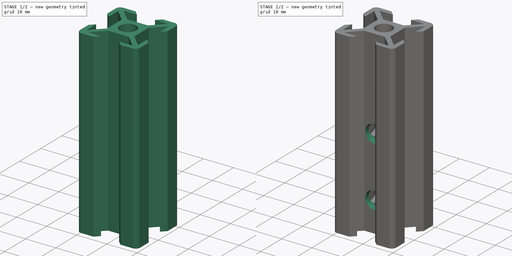
[diagram: build sequence overview — one tinted view per stage of 2, left to right]
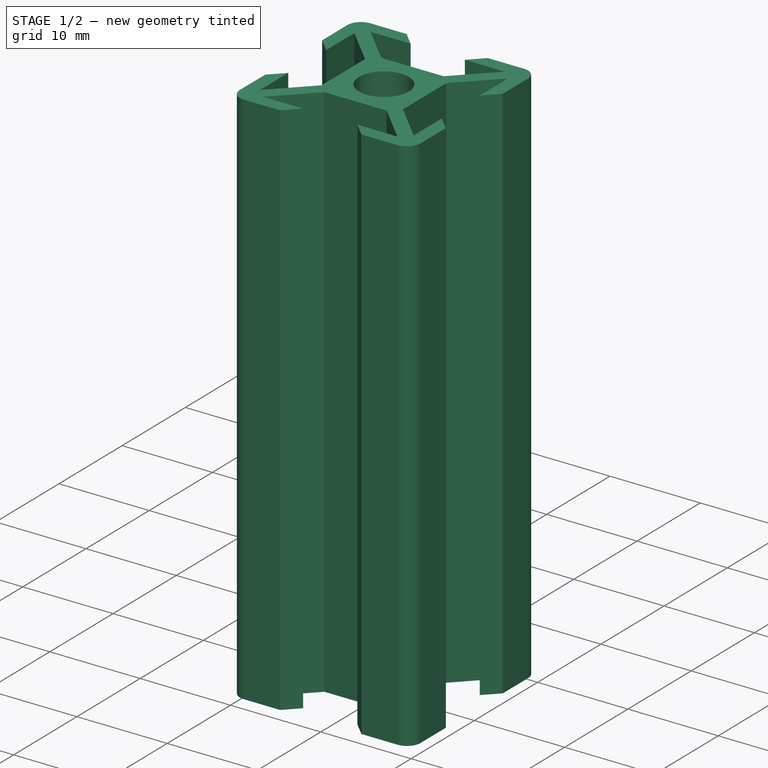
[diagram: stage 1 of 2 — iso view after this stage's code; geometry added in this stage tinted green]
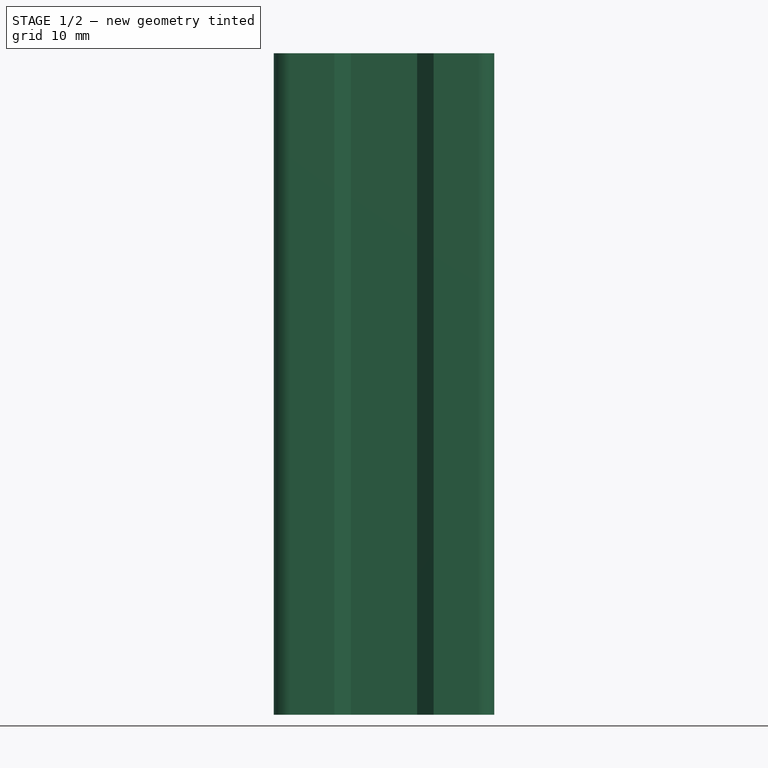
[diagram: stage 1 of 2 — front view after this stage's code; geometry added in this stage tinted green]
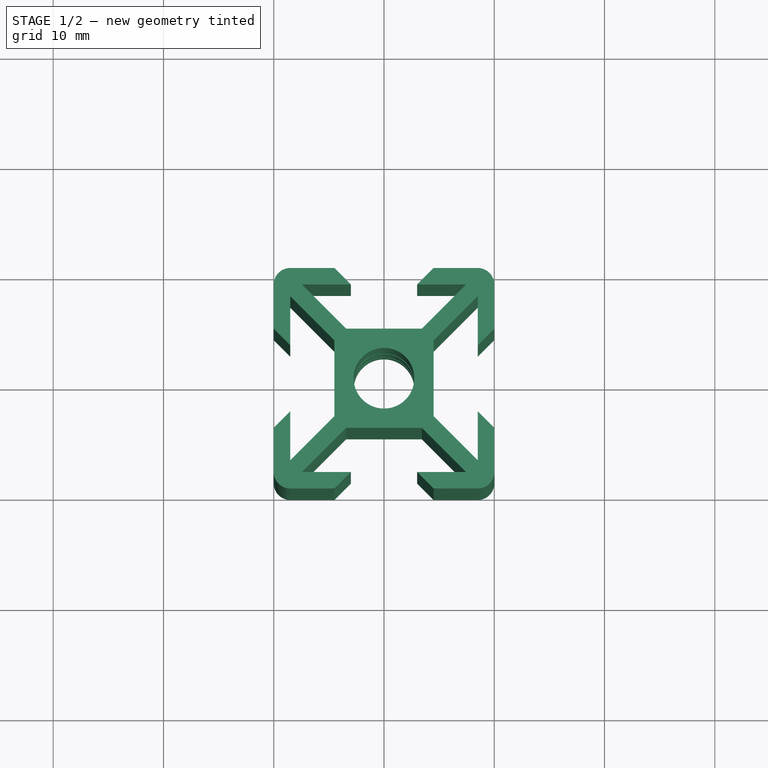
[diagram: stage 1 of 2 — top view after this stage's code; geometry added in this stage tinted green]
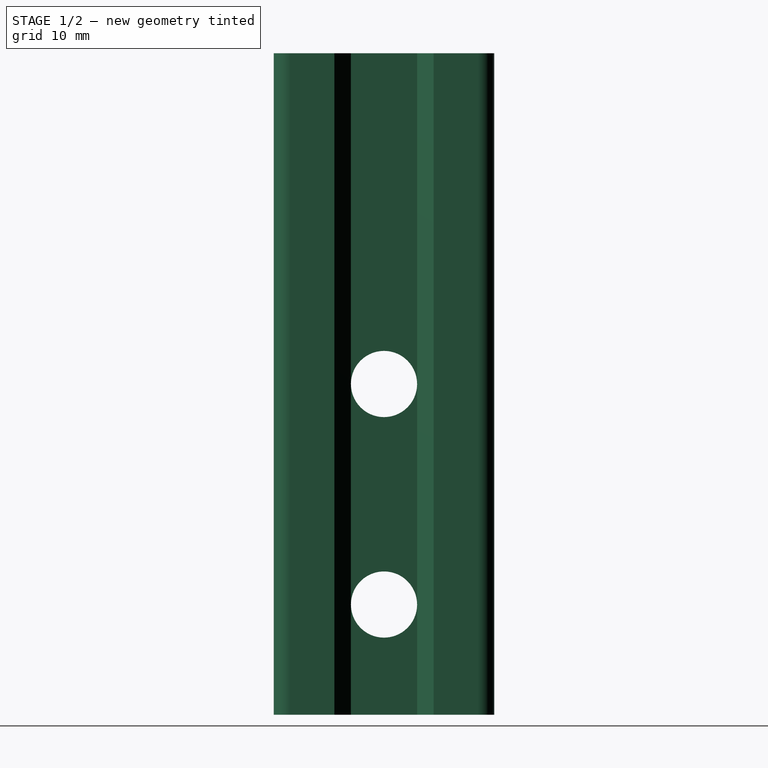
[diagram: stage 1 of 2 — right view after this stage's code; geometry added in this stage tinted green]
FCSTD DOCUMENT  (FreeCAD 0.20R29603 (Git))
Label: holed_2020_beam_40mm
License: All rights reserved
LicenseURL: http://en.wikipedia.org/wiki/All_rights_reserved
objects: Sketcher::SketchObject×3, PartDesign::Plane×2, PartDesign::Pocket×2, Spreadsheet::Sheet×1, PartDesign::Pad×1, PartDesign::Body×1
note: 12 computed .brp shape members not serialized (recipe doc carries the construction recipe); baked Part::Feature solids carry a one-line shape summary decoded from their .brp

FEATURE [Spreadsheet::Sheet] Spreadsheet  label="parameters"
  cells = A1=Beam dimensions; A2=Length; B2(beam_length)=60; A3=cross hole size; B3(cross_hole_size)=6
FEATURE [Sketcher::SketchObject] Sketch
  FullyConstrained = true
  MapMode = 5
  Support = -> [XY_Plane]
  sketch-geometry (57):
    g0: Circle CenterX=0 CenterY=0 CenterZ=0 NormalX=0 NormalY=0 NormalZ=1 AngleXU=0 Radius=2.75
    g1: LineSegment StartX=-4.5 StartY=4.5 StartZ=0 EndX=4.5 EndY=4.5 EndZ=0
    g2: LineSegment StartX=4.5 StartY=4.5 StartZ=0 EndX=4.5 EndY=-4.5 EndZ=0
    g3: LineSegment StartX=4.5 StartY=-4.5 StartZ=0 EndX=-4.5 EndY=-4.5 EndZ=0
    g4: LineSegment StartX=-4.5 StartY=-4.5 StartZ=0 EndX=-4.5 EndY=4.5 EndZ=0
    g5: LineSegment StartX=-10 StartY=10 StartZ=0 EndX=10 EndY=10 EndZ=0
    g6: LineSegment StartX=10 StartY=10 StartZ=0 EndX=10 EndY=-10 EndZ=0
    g7: LineSegment StartX=10 StartY=-10 StartZ=0 EndX=-10 EndY=-10 EndZ=0
    g8: LineSegment StartX=-10 StartY=-10 StartZ=0 EndX=-10 EndY=10 EndZ=0
    g9: LineSegment StartX=-8.5 StartY=8.5 StartZ=0 EndX=8.5 EndY=8.5 EndZ=0
    g10: LineSegment StartX=8.5 StartY=8.5 StartZ=0 EndX=8.5 EndY=-8.5 EndZ=0
    g11: LineSegment StartX=8.5 StartY=-8.5 StartZ=0 EndX=-8.5 EndY=-8.5 EndZ=0
    g12: LineSegment StartX=-8.5 StartY=-8.5 StartZ=0 EndX=-8.5 EndY=8.5 EndZ=0
    g13: ArcOfCircle CenterX=-8.5 CenterY=8.5 CenterZ=0 NormalX=0 NormalY=0 NormalZ=1 AngleXU=0 Radius=1.5 StartAngle=1.5708 EndAngle=3.14159
    g14: ArcOfCircle CenterX=8.5 CenterY=8.5 CenterZ=0 NormalX=0 NormalY=0 NormalZ=1 AngleXU=0 Radius=1.5 StartAngle=2.20881e-08 EndAngle=1.5708
    g15: ArcOfCircle CenterX=8.5 CenterY=-8.5 CenterZ=0 NormalX=0 NormalY=0 NormalZ=1 AngleXU=0 Radius=1.5 StartAngle=4.71239 EndAngle=6.28319
    g16: ArcOfCircle CenterX=-8.5 CenterY=-8.5 CenterZ=0 NormalX=0 NormalY=0 NormalZ=1 AngleXU=0 Radius=1.5 StartAngle=3.14159 EndAngle=4.71239
    g17: LineSegment StartX=7.43934 StartY=8.5 StartZ=0 EndX=8.5 EndY=7.43934 EndZ=0
    g18: LineSegment StartX=8.5 StartY=10 StartZ=0 EndX=4.5 EndY=10 EndZ=0
    g19: LineSegment StartX=4.5 StartY=10 StartZ=0 EndX=3 EndY=8.5 EndZ=0
    g20: LineSegment StartX=3 StartY=8.5 StartZ=0 EndX=7.43934 EndY=8.5 EndZ=0
    g21: LineSegment StartX=7.43934 StartY=8.5 StartZ=0 EndX=3.43934 EndY=4.5 EndZ=0
    g22: LineSegment StartX=-8.5 StartY=10 StartZ=0 EndX=-4.5 EndY=10 EndZ=0
    g23: LineSegment StartX=-4.5 StartY=10 StartZ=0 EndX=-3 EndY=8.5 EndZ=0
    g24: LineSegment StartX=-7.43934 StartY=8.5 StartZ=0 EndX=-8.5 EndY=7.43934 EndZ=0
    g25: LineSegment StartX=-8.5 StartY=-7.43934 StartZ=0 EndX=-7.43934 EndY=-8.5 EndZ=0
    g26: LineSegment StartX=8.5 StartY=-7.43934 StartZ=0 EndX=7.43934 EndY=-8.5 EndZ=0
    g27: LineSegment StartX=-3 StartY=8.5 StartZ=0 EndX=-7.43934 EndY=8.5 EndZ=0
    g28: LineSegment StartX=-7.43934 StartY=8.5 StartZ=0 EndX=-3.43934 EndY=4.5 EndZ=0
    g29: LineSegment StartX=-3.43934 StartY=4.5 StartZ=0 EndX=3.43934 EndY=4.5 EndZ=0
    g30: LineSegment StartX=-10 StartY=8.5 StartZ=0 EndX=-10 EndY=4.5 EndZ=0
    g31: LineSegment StartX=-10 StartY=4.5 StartZ=0 EndX=-8.5 EndY=3 EndZ=0
    g32: LineSegment StartX=-8.5 StartY=3 StartZ=0 EndX=-8.5 EndY=7.43934 EndZ=0
    g33: LineSegment StartX=-8.5 StartY=7.43934 StartZ=0 EndX=-4.5 EndY=3.43934 EndZ=0
    g34: LineSegment StartX=-4.5 StartY=3.43934 StartZ=0 EndX=-4.5 EndY=-3.43934 EndZ=0
    g35: LineSegment StartX=-4.5 StartY=-3.43934 StartZ=0 EndX=-8.5 EndY=-7.43934 EndZ=0
    g36: LineSegment StartX=-8.5 StartY=-7.43934 StartZ=0 EndX=-8.5 EndY=-3 EndZ=0
    g37: LineSegment StartX=-8.5 StartY=-3 StartZ=0 EndX=-10 EndY=-4.5 EndZ=0
    g38: LineSegment StartX=-10 StartY=-4.5 StartZ=0 EndX=-10 EndY=-8.5 EndZ=0
    g39: LineSegment StartX=-8.5 StartY=-10 StartZ=0 EndX=-4.5 EndY=-10 EndZ=0
    g40: LineSegment StartX=-4.5 StartY=-10 StartZ=0 EndX=-3 EndY=-8.5 EndZ=0
    g41: LineSegment StartX=-3 StartY=-8.5 StartZ=0 EndX=-7.43934 EndY=-8.5 EndZ=0
    g42: LineSegment StartX=-7.43934 StartY=-8.5 StartZ=0 EndX=-3.43934 EndY=-4.5 EndZ=0
    g43: LineSegment StartX=-3.43934 StartY=-4.5 StartZ=0 EndX=3.43934 EndY=-4.5 EndZ=0
    g44: LineSegment StartX=3.43934 StartY=-4.5 StartZ=0 EndX=7.43934 EndY=-8.5 EndZ=0
    g45: LineSegment StartX=7.43934 StartY=-8.5 StartZ=0 EndX=3 EndY=-8.5 EndZ=0
    g46: LineSegment StartX=3 StartY=-8.5 StartZ=0 EndX=4.5 EndY=-10 EndZ=0
    g47: LineSegment StartX=4.5 StartY=-10 StartZ=0 EndX=8.5 EndY=-10 EndZ=0
    g48: LineSegment StartX=10 StartY=-8.5 StartZ=0 EndX=10 EndY=-4.5 EndZ=0
    g49: LineSegment StartX=10 StartY=-4.5 StartZ=0 EndX=8.5 EndY=-3 EndZ=0
    g50: LineSegment StartX=8.5 StartY=-3 StartZ=0 EndX=8.5 EndY=-7.43934 EndZ=0
    g51: LineSegment StartX=8.5 StartY=-7.43934 StartZ=0 EndX=4.5 EndY=-3.43934 EndZ=0
    g52: LineSegment StartX=4.5 StartY=-3.43934 StartZ=0 EndX=4.5 EndY=3.43934 EndZ=0
    g53: LineSegment StartX=4.5 StartY=3.43934 StartZ=0 EndX=8.5 EndY=7.43934 EndZ=0
    g54: LineSegment StartX=8.5 StartY=7.43934 StartZ=0 EndX=8.5 EndY=3 EndZ=0
    g55: LineSegment StartX=8.5 StartY=3 StartZ=0 EndX=10 EndY=4.5 EndZ=0
    g56: LineSegment StartX=10 StartY=4.5 StartZ=0 EndX=10 EndY=8.5 EndZ=0
  constraints (158):
    c: Coincident(g0,g-1)
    c: Coincident(g1,g2)
    c: Coincident(g2,g3)
    c: Coincident(g3,g4)
    c: Coincident(g4,g1)
    c: Horizontal(g1)
    c: Horizontal(g3)
    c: Vertical(g2)
    c: Vertical(g4)
    c: Symmetric(g1,g3,g0)
    c: Diameter(g0) = 5.5
    c: Equal(g1,g2)
    c: Distance(g1) = 9
    c: Coincident(g5,g6)
    c: Coincident(g6,g7)
    c: Coincident(g7,g8)
    c: Coincident(g8,g5)
    c: Horizontal(g5)
    c: Horizontal(g7)
    c: Vertical(g6)
    c: Vertical(g8)
    c: Symmetric(g5,g7,g0)
    c: Distance(g5) = 20
    c: Equal(g5,g6)
    c: Coincident(g9,g10)
    c: Coincident(g10,g11)
    c: Coincident(g11,g12)
    c: Coincident(g12,g9)
    c: Horizontal(g9)
    c: Horizontal(g11)
    c: Vertical(g10)
    c: Vertical(g12)
    c: Symmetric(g9,g11,g0)
    c: Distance(g9) = 17
    c: Equal(g9,g10)
    c: Coincident(g13,g9)
    c: PointOnObject(g13,g5)
    c: PointOnObject(g13,g8)
    c: Vertical(g13,g13)
    c: Coincident(g14,g9)
    c: PointOnObject(g14,g5)
    c: PointOnObject(g14,g6)
    c: Vertical(g14,g14)
    c: Coincident(g15,g10)
    c: PointOnObject(g15,g6)
    c: PointOnObject(g15,g7)
    c: Vertical(g15,g15)
    c: Coincident(g16,g11)
    c: PointOnObject(g16,g7)
    c: PointOnObject(g16,g8)
    c: Vertical(g16,g16)
    c: PointOnObject(g17,g9)
    c: PointOnObject(g17,g10)
    c: Distance(g17) = 1.5
    c: Angle(g17,g10) = 2.35619
    c: Tangent(g14,g18) = -1.5708
    c: Coincident(g18,g19)
    c: PointOnObject(g19,g9)
    c: Coincident(g19,g20)
    c: Coincident(g20,g17)
    c: Coincident(g20,g21)
    c: PointOnObject(g21,g1)
    c: Angle(g19,g18) = 2.35619
    c: Tangent(g13,g22) = 1.5708
    c: Coincident(g22,g23)
    c: PointOnObject(g23,g9)
    c: PointOnObject(g24,g9)
    c: PointOnObject(g24,g12)
    c: PointOnObject(g25,g12)
    c: PointOnObject(g25,g11)
    c: PointOnObject(g26,g10)
    c: PointOnObject(g26,g11)
    c: Equal(g24,g17)
    c: Equal(g17,g25)
    c: Equal(g17,g26)
    c: Horizontal(g24,g17)
    c: Vertical(g20,g26)
    c: Horizontal(g26,g25)
    c: Coincident(g23,g27)
    c: Coincident(g27,g24)
    c: Coincident(g27,g28)
    c: PointOnObject(g28,g1)
    c: Distance(g19,g23) = 6
    c: Angle(g22,g23) = 2.35619
    c: Equal(g27,g20)
    c: Angle(g20,g21) = 0.785398
    c: Equal(g21,g28)
    c: Coincident(g29,g28)
    c: Coincident(g29,g21)
    c: Tangent(g13,g30) = -1.5708
    c: Coincident(g30,g31)
    c: PointOnObject(g31,g12)
    c: Coincident(g31,g32)
    c: Coincident(g32,g24)
    c: Coincident(g32,g33)
    c: PointOnObject(g33,g4)
    c: Coincident(g33,g34)
    c: PointOnObject(g34,g4)
    c: Coincident(g34,g35)
    c: Coincident(g35,g25)
    c: Coincident(g35,g36)
    c: PointOnObject(g36,g12)
    c: Coincident(g36,g37)
    c: PointOnObject(g37,g8)
    c: Coincident(g37,g38)
    c: Coincident(g38,g16)
    c: Tangent(g16,g39) = -1.5708
    c: Coincident(g39,g40)
    c: PointOnObject(g40,g11)
    c: Coincident(g40,g41)
    c: Coincident(g41,g25)
    c: Coincident(g41,g42)
    c: PointOnObject(g42,g3)
    c: Coincident(g42,g43)
    c: PointOnObject(g43,g3)
    c: Coincident(g43,g44)
    c: Coincident(g44,g26)
    c: Coincident(g44,g45)
    c: PointOnObject(g45,g11)
    c: Coincident(g45,g46)
    c: PointOnObject(g46,g7)
    c: Coincident(g46,g47)
    c: Coincident(g47,g15)
    c: Tangent(g15,g48) = -1.5708
    c: Coincident(g48,g49)
    c: PointOnObject(g49,g10)
    c: Coincident(g49,g50)
    c: Coincident(g50,g26)
    c: Coincident(g50,g51)
    c: PointOnObject(g51,g2)
    c: Coincident(g51,g52)
    c: PointOnObject(g52,g2)
    c: Coincident(g52,g53)
    c: Coincident(g53,g17)
    c: Coincident(g53,g54)
    c: PointOnObject(g54,g10)
    c: Coincident(g54,g55)
    c: PointOnObject(g55,g6)
    c: Coincident(g55,g56)
    c: Coincident(g56,g14)
    c: Equal(g21,g53)
    c: Equal(g21,g51)
    c: Equal(g21,g44)
    c: Equal(g21,g42)
    c: Equal(g21,g35)
    c: Equal(g20,g32)
    c: Equal(g20,g36)
    c: Equal(g20,g41)
    c: Vertical(g22,g39)
    c: Vertical(g18,g46)
    c: Equal(g20,g45)
    c: Equal(g21,g33)
    c: Angle(g31,g30) = 2.35619
    c: Angle(g38,g37) = 2.35619
    c: Horizontal(g31,g54)
    c: Horizontal(g30,g55)
    c: Horizontal(g36,g49)
    c: Horizontal(g37,g48)
FEATURE [PartDesign::Pad] Pad  label="extrusion_body"
  Direction = (0,0,1)
  Length = 60
  Length2 = 10
  Profile = -> Sketch
  ReferenceAxis = -> Sketch [N_Axis]
  Type = 0
  expr: Length = <<parameters>>.beam_length
FEATURE [PartDesign::Plane] DatumPlane  label="right_plane"
  AttachmentOffset = pos=(0,0,10) rot=(0,0,1;0rad)
  Length = 63.0384
  MapMode = 5
  Placement = pos=(10,-2.2e-15,2.2e-15) rot=(0.57735,0.57735,0.57735;2.0944rad)
  ResizeMode = 0
  Support = -> [YZ_Plane]
  Width = 98.0384
FEATURE [PartDesign::Plane] DatumPlane001  label="bottom_plane"
  AttachmentOffset = pos=(0,0,10) rot=(0,0,1;0rad)
  Length = 63.0384
  MapMode = 5
  Placement = pos=(0,-10,-2.2e-15) rot=(1,0,0;1.5708rad)
  ResizeMode = 0
  Support = -> [XZ_Plane]
  Width = 98.0384
FEATURE [Sketcher::SketchObject] Sketch001
  FullyConstrained = true
  MapMode = 5
  Placement = pos=(10,-2.2e-15,2.2e-15) rot=(0.57735,0.57735,0.57735;2.0944rad)
  Support = -> [DatumPlane]
  expr: Constraints[8] = <<parameters>>.cross_hole_size
  sketch-geometry (4):
    g0: LineSegment StartX=0 StartY=0 StartZ=0 EndX=0 EndY=10 EndZ=0
    g1: LineSegment StartX=0 StartY=10 StartZ=0 EndX=0 EndY=30 EndZ=0
    g2: Circle CenterX=0 CenterY=10 CenterZ=0 NormalX=0 NormalY=0 NormalZ=1 AngleXU=0 Radius=3
    g3: Circle CenterX=0 CenterY=30 CenterZ=0 NormalX=0 NormalY=0 NormalZ=1 AngleXU=0 Radius=3
  constraints (10):
    c: Coincident(g-1,g0)
    c: PointOnObject(g0,g-2)
    c: Coincident(g0,g1)
    c: PointOnObject(g1,g-2)
    c: Distance(g0) = 10
    c: Coincident(g2,g0)
    c: Coincident(g3,g1)
    c: Equal(g2,g3)
    c: Diameter(g2) = 6
    c: Distance(g1) = 20
FEATURE [PartDesign::Pocket] Pocket  label="right_holes"
  BaseFeature = -> Pad
  Direction = (-1,1e-16,-1e-16)
  Length = 5
  Length2 = 5
  Profile = -> Sketch001
  ReferenceAxis = -> Sketch001 [N_Axis]
  Type = 1
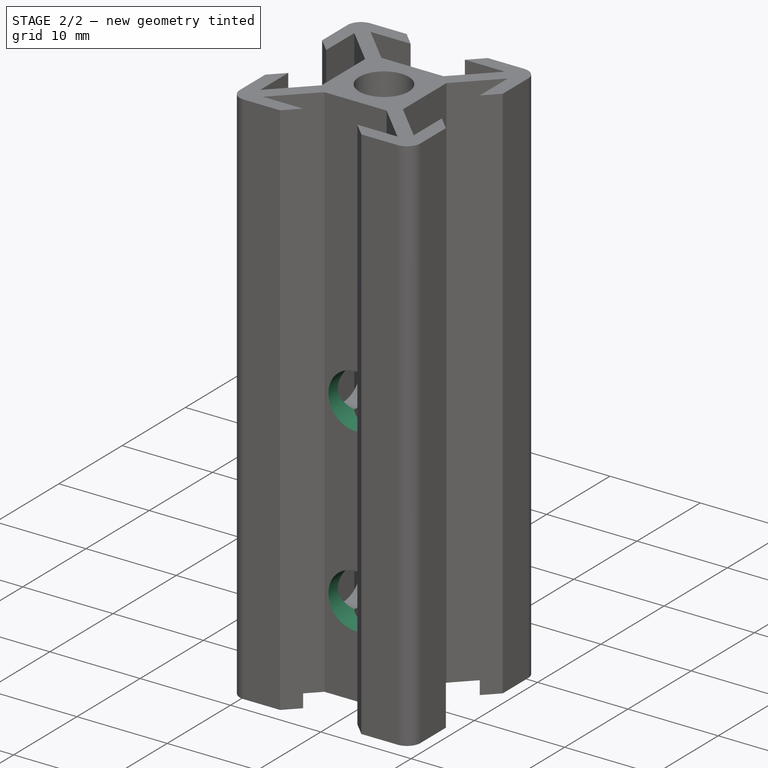
[diagram: stage 2 of 2 — iso view after this stage's code; geometry added in this stage tinted green]
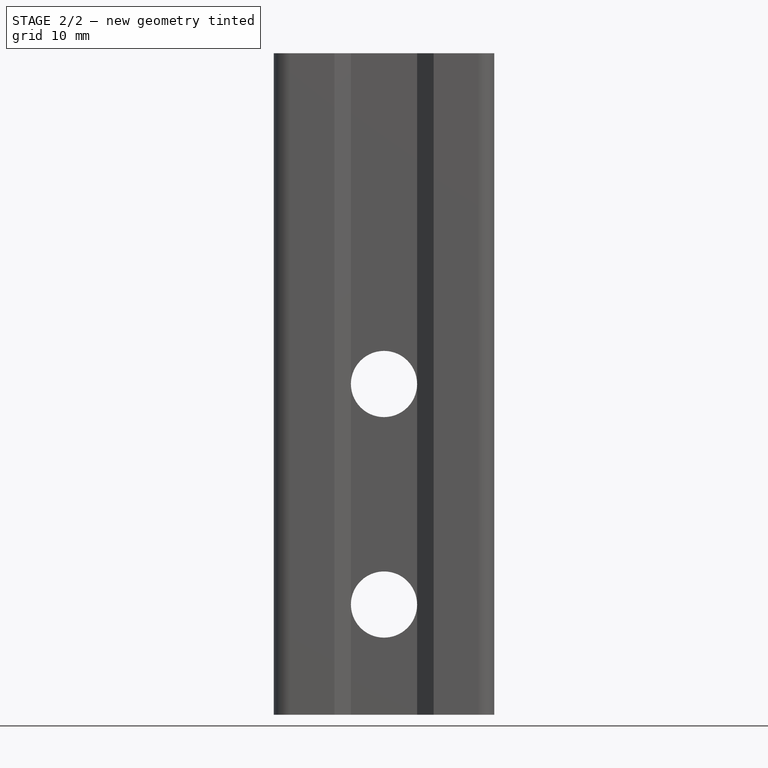
[diagram: stage 2 of 2 — front view after this stage's code; geometry added in this stage tinted green]
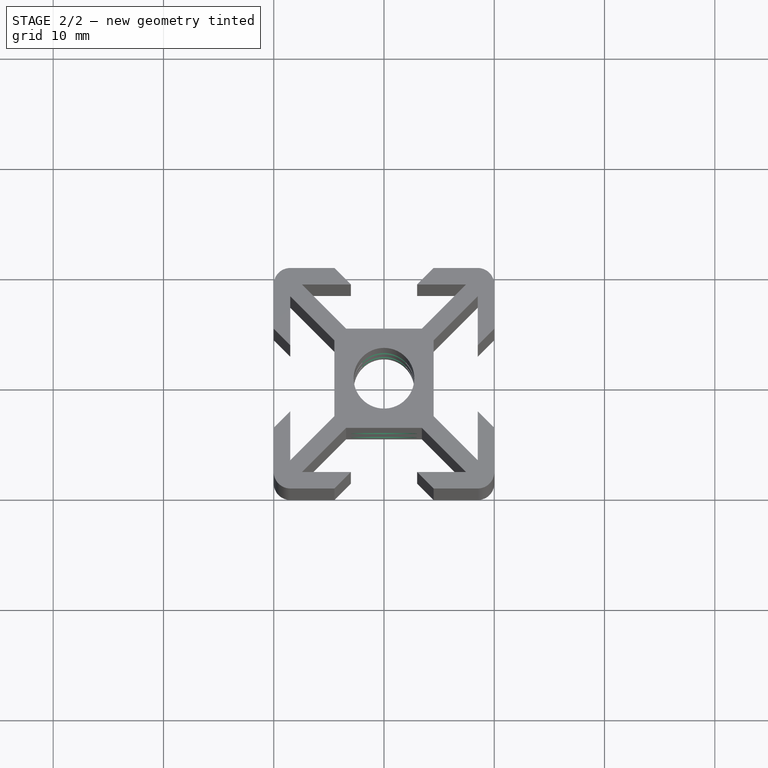
[diagram: stage 2 of 2 — top view after this stage's code; geometry added in this stage tinted green]
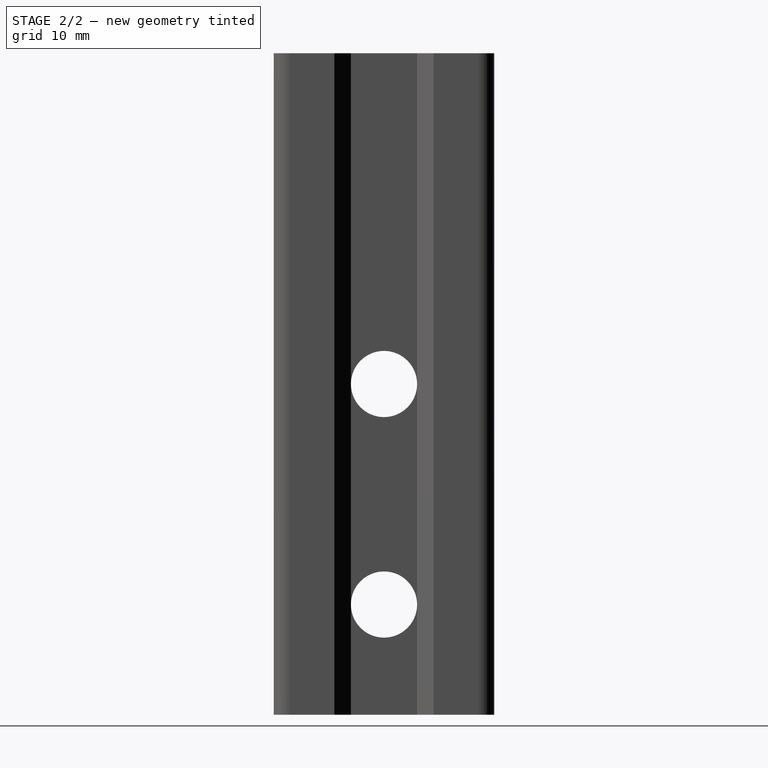
[diagram: stage 2 of 2 — right view after this stage's code; geometry added in this stage tinted green]
FEATURE [Sketcher::SketchObject] Sketch002
  FullyConstrained = true
  MapMode = 5
  Placement = pos=(0,-10,-2.2e-15) rot=(1,0,0;1.5708rad)
  Support = -> [DatumPlane001]
  expr: Constraints[9] = <<parameters>>.cross_hole_size
  sketch-geometry (4):
    g0: LineSegment StartX=0 StartY=0 StartZ=0 EndX=0 EndY=10 EndZ=0
    g1: LineSegment StartX=0 StartY=10 StartZ=0 EndX=0 EndY=30 EndZ=0
    g2: Circle CenterX=0 CenterY=10 CenterZ=0 NormalX=0 NormalY=0 NormalZ=1 AngleXU=0 Radius=3
    g3: Circle CenterX=0 CenterY=30 CenterZ=0 NormalX=0 NormalY=0 NormalZ=1 AngleXU=0 Radius=3
  constraints (10):
    c: Coincident(g-1,g0)
    c: Vertical(g0)
    c: Coincident(g0,g1)
    c: PointOnObject(g1,g-2)
    c: Distance(g0) = 10
    c: Distance(g1) = 20
    c: Coincident(g2,g0)
    c: Coincident(g3,g1)
    c: Equal(g3,g2)
    c: Diameter(g2) = 6
FEATURE [PartDesign::Pocket] Pocket001  label="bottom_holes"
  BaseFeature = -> Pocket
  Direction = (0,1,2e-16)
  Length = 5
  Length2 = 5
  Profile = -> Sketch002
  ReferenceAxis = -> Sketch002 [N_Axis]
  Type = 1
FEATURE [PartDesign::Body] Body  label="holed_2020_beam"
  Group = -> [Sketch,Pad,DatumPlane,DatumPlane001,Sketch001,Pocket,Sketch002,Pocket001]
  Origin = -> Origin
  Tip = -> Pocket001
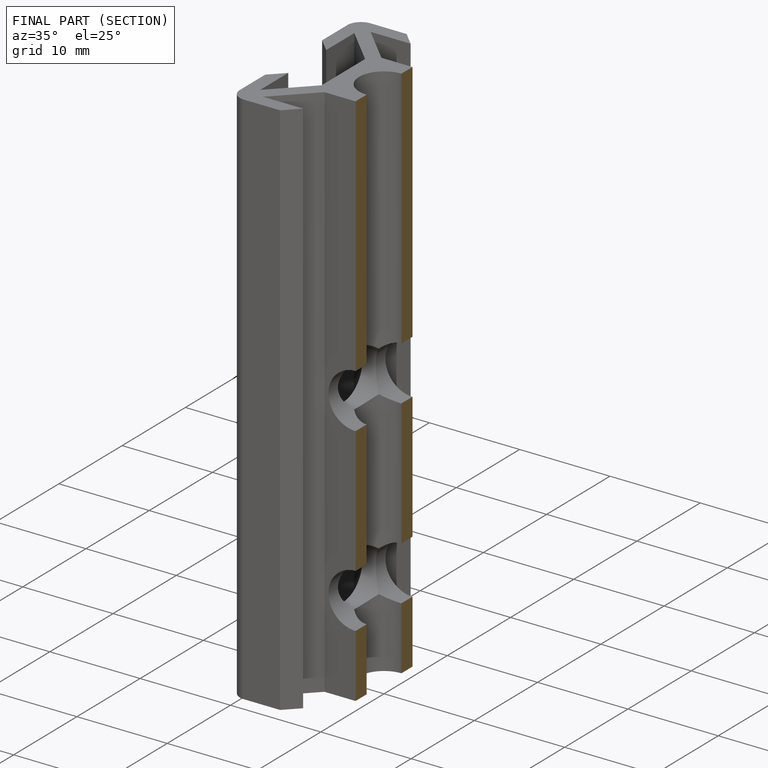
[diagram: finished part — half-section view (interior)]
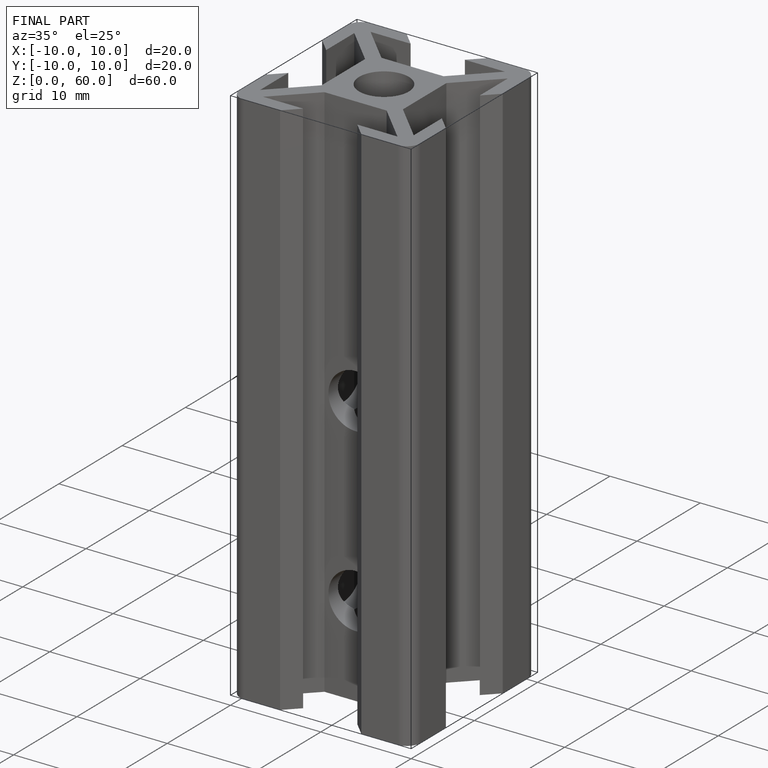
[diagram: finished part — iso view with bounding-box wireframe]
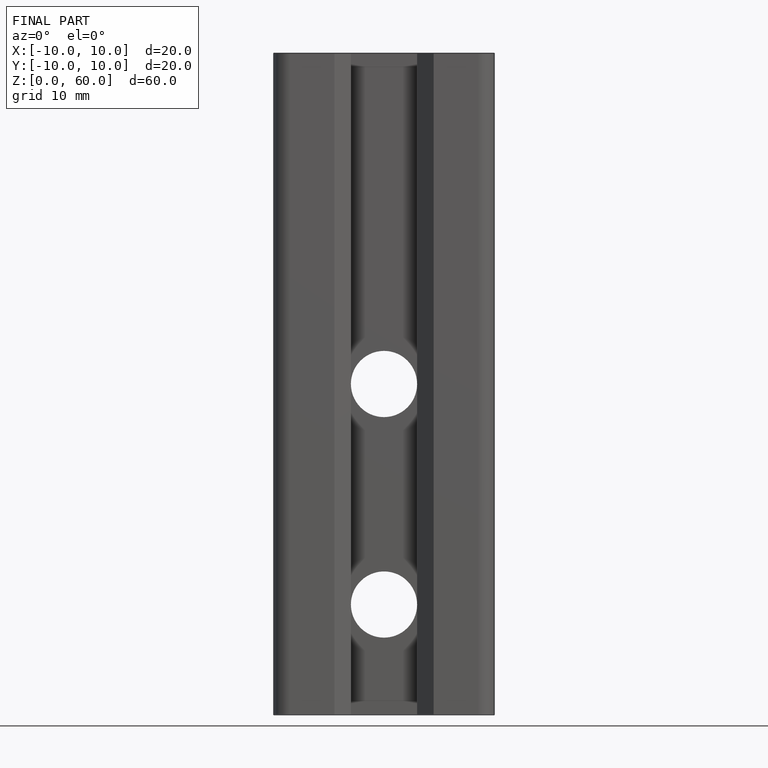
[diagram: finished part — front view with bounding-box wireframe]
